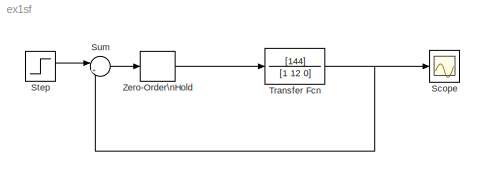
MODEL ex1sf
KIND model
BLOCK [Scope] Scope
  DataFormat = StructureWithTime
  Floating = off
  NumInputPorts = 1
  Ports = [1]
  SID = 2
  SampleTime = 0
  ShowLegends = off
  TimeRange = 10
BLOCK [Step] Step
  SID = 1
  SampleTime = 0
  Time = 0.1
BLOCK [Sum] Sum
  IconShape = round
  InputSameDT = off
  Inputs = |+-
  OutDataTypeStr = Inherit: Inherit via internal rule
  Ports = [2, 1]
  SID = 7
  SaturateOnIntegerOverflow = off
BLOCK [TransferFcn] Transfer Fcn
  Denominator = [1 12 0]
  Numerator = [144]
  SID = 5
BLOCK [ZeroOrderHold] Zero-Order\nHold
  SID = 6
LINE Step:1 -> Sum:1
LINE Sum:1 -> Zero-Order\nHold:1
NET Transfer Fcn:1 -> Scope:1, Sum:2
LINE Zero-Order\nHold:1 -> Transfer Fcn:1
note: NET lines group one-source signal fan-out (src -> all destinations, sorted); 1:1 wires keep LINE
